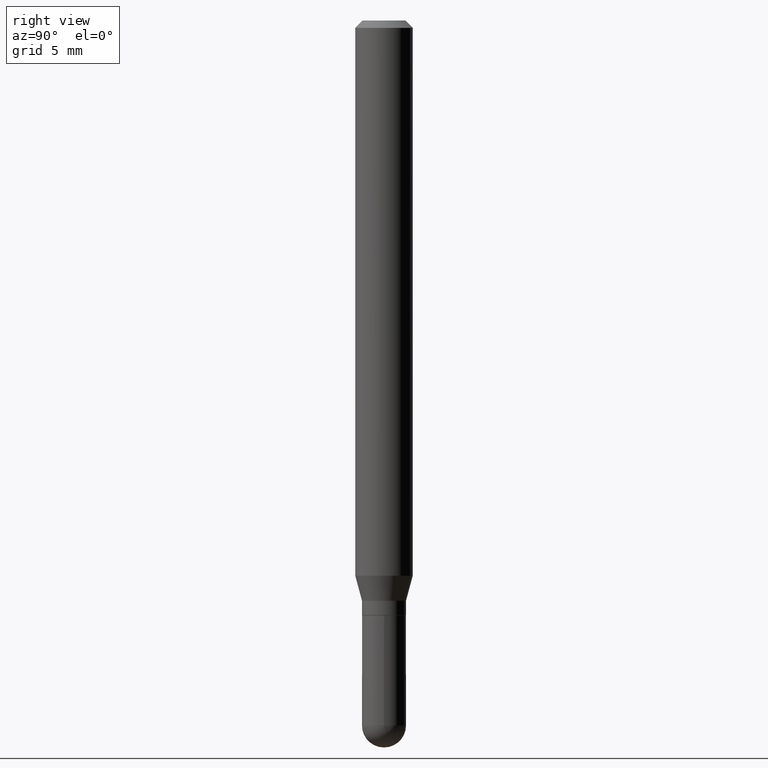
[diagram: clean part render]
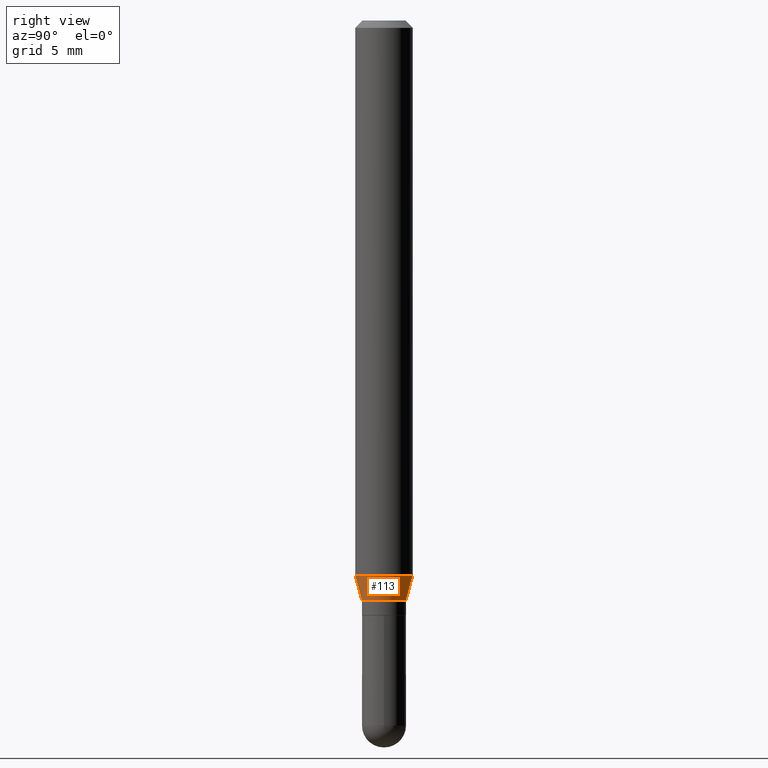
[diagram: same view with one face highlighted and labeled with its STEP entity id]
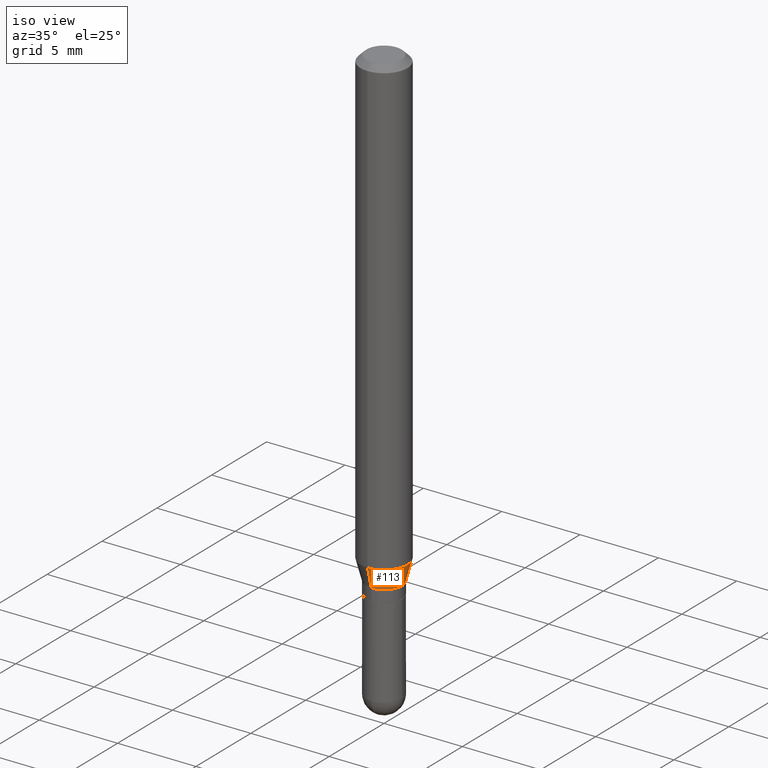
[diagram: same view with one face highlighted and labeled with its STEP entity id]
A machine part, right view. The second image highlights one B-rep face of the part: STEP entity #113.
A second angle (iso view) of the same face is appended — the face is thin or edge-on in the first view.
In plain terms, the highlighted conical surface has half-angle 15 deg.
Its self-contained STEP definition (entity closure, byte-faithful):
#20 = CARTESIAN_POINT ( 'NONE',  ( 3.707256723828610594E-16, 0.04529999999999589216, -1.194100000000000161 ) ) ;
#26 = DIRECTION ( 'NONE',  ( 1.839019923739603865E-15, 0.2588190451025254579, 0.9659258262890669799 ) ) ;
#31 = LINE ( 'NONE', #401, #202 ) ;
#41 = ORIENTED_EDGE ( 'NONE', *, *, #55, .T. ) ;
#48 = EDGE_CURVE ( 'NONE', #218, #253, #294, .T. ) ;
#55 = EDGE_CURVE ( 'NONE', #231, #437, #241, .T. ) ;
#57 = CONICAL_SURFACE ( 'NONE', #359, 0.04530000000000006244, 0.2617993877991508511 ) ;
#64 = EDGE_CURVE ( 'NONE', #231, #218, #382, .T. ) ;
#83 = FACE_OUTER_BOUND ( 'NONE', #365, .T. ) ;
#92 = AXIS2_PLACEMENT_3D ( 'NONE', #216, #219, #387 ) ;
#101 = AXIS2_PLACEMENT_3D ( 'NONE', #201, #224, #293 ) ;
#113 = ADVANCED_FACE ( 'NONE', ( #83 ), #57, .T. ) ;
#186 = ORIENTED_EDGE ( 'NONE', *, *, #207, .T. ) ;
#201 = CARTESIAN_POINT ( 'NONE',  ( 2.794586070951398077E-29, -3.990092105632066649E-15, -1.142784301395928459 ) ) ;
#202 = VECTOR ( 'NONE', #26, 39.37007874015748854 ) ;
#207 = EDGE_CURVE ( 'NONE', #437, #253, #31, .T. ) ;
#212 = CARTESIAN_POINT ( 'NONE',  ( -3.163282092991590424E-16, -0.04530000000000422578, -1.194099999999999939 ) ) ;
#216 = CARTESIAN_POINT ( 'NONE',  ( 2.920074438585522124E-29, -4.169263593764157462E-15, -1.194099999999999939 ) ) ;
#218 = VERTEX_POINT ( 'NONE', #240 ) ;
#219 = DIRECTION ( 'NONE',  ( -2.445418673968279448E-29, 3.491553131031033645E-15, 1.000000000000000000 ) ) ;
#224 = DIRECTION ( 'NONE',  ( -2.445418673968279448E-29, 3.491553131031033645E-15, 1.000000000000000000 ) ) ;
#231 = VERTEX_POINT ( 'NONE', #377 ) ;
#240 = CARTESIAN_POINT ( 'NONE',  ( -4.123439461173460774E-16, -0.05905000000000398819, -1.142784301395928237 ) ) ;
#241 = CIRCLE ( 'NONE', #92, 0.04530000000000006244 ) ;
#252 = CARTESIAN_POINT ( 'NONE',  ( 2.920074438585522124E-29, -4.169263593764157462E-15, -1.194099999999999939 ) ) ;
#253 = VERTEX_POINT ( 'NONE', #370 ) ;
#274 = VECTOR ( 'NONE', #490, 39.37007874015748854 ) ;
#290 = ORIENTED_EDGE ( 'NONE', *, *, #64, .F. ) ;
#293 = DIRECTION ( 'NONE',  ( -6.982962677686265922E-15, -1.000000000000000000, 4.626330217890369336E-15 ) ) ;
#294 = CIRCLE ( 'NONE', #101, 0.05904999999999999832 ) ;
#359 = AXIS2_PLACEMENT_3D ( 'NONE', #252, #412, #488 ) ;
#365 = EDGE_LOOP ( 'NONE', ( #41, #186, #464, #290 ) ) ;
#370 = CARTESIAN_POINT ( 'NONE',  ( 4.195754854663669552E-16, 0.05904999999999600152, -1.142784301395928681 ) ) ;
#377 = CARTESIAN_POINT ( 'NONE',  ( -3.163282092991590424E-16, -0.04530000000000422578, -1.194099999999999939 ) ) ;
#382 = LINE ( 'NONE', #212, #274 ) ;
#387 = DIRECTION ( 'NONE',  ( -6.982962677686265133E-15, -1.000000000000000000, 3.015284761218829434E-15 ) ) ;
#401 = CARTESIAN_POINT ( 'NONE',  ( 3.218758592993549171E-16, 0.04529999999999589216, -1.194100000000000161 ) ) ;
#412 = DIRECTION ( 'NONE',  ( -2.445418673968279448E-29, 3.491553131031033645E-15, 1.000000000000000000 ) ) ;
#437 = VERTEX_POINT ( 'NONE', #20 ) ;
#464 = ORIENTED_EDGE ( 'NONE', *, *, #48, .F. ) ;
#488 = DIRECTION ( 'NONE',  ( -6.982962677686265133E-15, -1.000000000000000000, 3.015284761218829434E-15 ) ) ;
#490 = DIRECTION ( 'NONE',  ( -1.807323732225333689E-15, -0.2588190451025186856, 0.9659258262890687563 ) ) ;